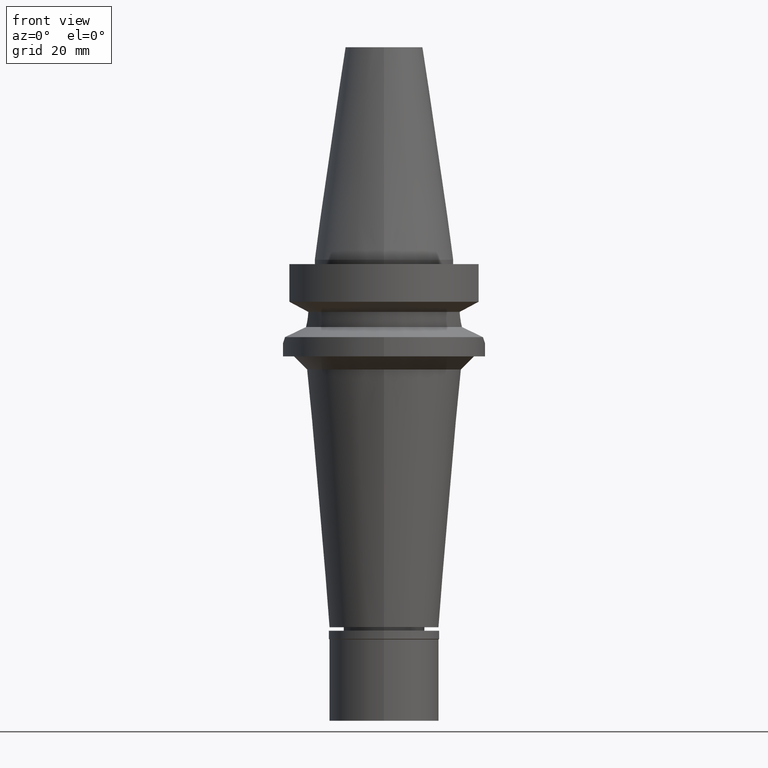
[diagram: clean part render]
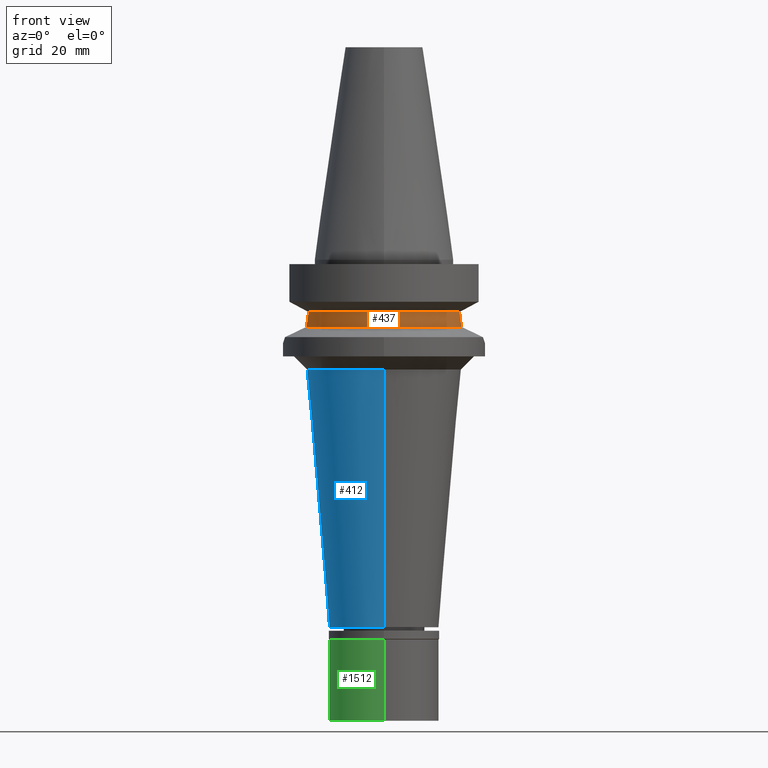
[diagram: same view with three faces highlighted in distinct colors, each labeled with its STEP entity id]
A machine part, front view with three faces highlighted in distinct colors.
Their STEP definitions:

[orange] entity #437 — the highlighted cylindrical surface (partial cylindrical patch) has radius 19 mm, axis along (0, 0, -1).
#46 = CARTESIAN_POINT ( 'NONE',  ( 17.61322740977063006, -7.137115852429626095, -14.73814199214981180 ) ) ;
#98 = ORIENTED_EDGE ( 'NONE', *, *, #142, .T. ) ;
#142 = EDGE_CURVE ( 'NONE', #2130, #449, #2701, .T. ) ;
#242 = B_SPLINE_CURVE_WITH_KNOTS ( 'NONE', 3,
 ( #2505, #371, #1808, #1345, #2859, #2172, #1680, #2631, #2647, #1666, #2605, #1707, #1502, #46, #2422 ),
 .UNSPECIFIED., .F., .F.,
 ( 4, 2, 2, 1, 1, 1, 2, 2, 4 ),
 ( 0.0000000000000000000, 0.2500000000000048295, 0.3750000000000078271, 0.4375000000000092704, 0.4687500000000104916, 0.4843750000000111022, 0.4921875000000112688, 0.5000000000000114353, 1.000000000000000000 ),
 .UNSPECIFIED. ) ;
#262 = CARTESIAN_POINT ( 'NONE',  ( -17.23531622872000213, -7.996491146969001207, -11.87660607765000087 ) ) ;
#371 = CARTESIAN_POINT ( 'NONE',  ( 17.25079912589399456, -7.963111191519515408, -12.16468723334847724 ) ) ;
#391 = DIRECTION ( 'NONE',  ( 0.0000000000000000000, 0.0000000000000000000, -1.000000000000000000 ) ) ;
#437 = ADVANCED_FACE ( 'NONE', ( #916 ), #1623, .T. ) ;
#449 = VERTEX_POINT ( 'NONE', #3042 ) ;
#483 = CARTESIAN_POINT ( 'NONE',  ( -17.32791680505555831, -7.797408658810238258, -13.04851916292124692 ) ) ;
#686 = CARTESIAN_POINT ( 'NONE',  ( -17.42165591776776523, -7.582123399470170000, -13.65444127732681245 ) ) ;
#745 = CARTESIAN_POINT ( 'NONE',  ( -17.47456408189346178, -7.459707853905101160, -13.97666143172861375 ) ) ;
#804 = DIRECTION ( 'NONE',  ( 0.0000000000000000000, 0.0000000000000000000, 1.000000000000000000 ) ) ;
#831 = CARTESIAN_POINT ( 'NONE',  ( 0.0000000000000000000, 0.0000000000000000000, -11.87660944646999894 ) ) ;
#906 = B_SPLINE_CURVE_WITH_KNOTS ( 'NONE', 3,
 ( #1661, #2627, #1898, #1928, #1881, #745, #2151, #2389, #1911, #2809, #1863, #686, #483, #2599, #262 ),
 .UNSPECIFIED., .F., .F.,
 ( 4, 2, 2, 1, 1, 1, 2, 2, 4 ),
 ( 0.0000000000000000000, 0.2499999999999951705, 0.3749999999999929501, 0.4374999999999921174, 0.4687499999999926170, 0.4843749999999927280, 0.4921874999999929501, 0.4999999999999931166, 1.000000000000000000 ),
 .UNSPECIFIED. ) ;
#916 = FACE_OUTER_BOUND ( 'NONE', #2918, .T. ) ;
#1003 = CARTESIAN_POINT ( 'NONE',  ( 0.0000000000000000000, 0.0000000000000000000, -15.32339055352999857 ) ) ;
#1160 = EDGE_CURVE ( 'NONE', #1637, #2075, #2645, .T. ) ;
#1161 = EDGE_CURVE ( 'NONE', #1637, #449, #242, .T. ) ;
#1165 = AXIS2_PLACEMENT_3D ( 'NONE', #831, #391, #2960 ) ;
#1339 = CARTESIAN_POINT ( 'NONE',  ( 17.23531135313000107, -7.996501749111999402, -11.87660739354000050 ) ) ;
#1345 = CARTESIAN_POINT ( 'NONE',  ( 17.32020187248921772, -7.811452264172603854, -12.90108126290883739 ) ) ;
#1502 = CARTESIAN_POINT ( 'NONE',  ( 17.50086807617385531, -7.400179108631100178, -14.16641331418214378 ) ) ;
#1613 = CARTESIAN_POINT ( 'NONE',  ( -17.23531622872000213, -7.996491146969001207, -11.87660607765000087 ) ) ;
#1623 = CYLINDRICAL_SURFACE ( 'NONE', #2640, 19.00000000000000000 ) ;
#1625 = AXIS2_PLACEMENT_3D ( 'NONE', #1003, #804, #2894 ) ;
#1637 = VERTEX_POINT ( 'NONE', #1339 ) ;
#1656 = CARTESIAN_POINT ( 'NONE',  ( 0.0000000000000000000, 0.0000000000000000000, 0.0000000000000000000 ) ) ;
#1661 = CARTESIAN_POINT ( 'NONE',  ( -17.75736593456000278, -6.758398853743999624, -15.32339055352999857 ) ) ;
#1666 = CARTESIAN_POINT ( 'NONE',  ( 17.41455400305665435, -7.598412036639295764, -13.60833259783796478 ) ) ;
#1680 = CARTESIAN_POINT ( 'NONE',  ( 17.38156622602346246, -7.673725376885411009, -13.38458314353863798 ) ) ;
#1707 = CARTESIAN_POINT ( 'NONE',  ( 17.41902886904462022, -7.588145056447470616, -13.63749496349985257 ) ) ;
#1808 = CARTESIAN_POINT ( 'NONE',  ( 17.27395772732930013, -7.913379800553383525, -12.45762674819685323 ) ) ;
#1863 = CARTESIAN_POINT ( 'NONE',  ( -17.42274042983988736, -7.579631478955776380, -13.66141326524954280 ) ) ;
#1881 = CARTESIAN_POINT ( 'NONE',  ( -17.51074945337274613, -7.374797396836243024, -14.18056436359429462 ) ) ;
#1898 = CARTESIAN_POINT ( 'NONE',  ( -17.62114728965395116, -7.108330574576632088, -14.74101777716710160 ) ) ;
#1911 = CARTESIAN_POINT ( 'NONE',  ( -17.42913852640172578, -7.564920785720927299, -13.70227250419844012 ) ) ;
#1928 = CARTESIAN_POINT ( 'NONE',  ( -17.53685925040699445, -7.312726842105840674, -14.31911649677020471 ) ) ;
#1937 = ORIENTED_EDGE ( 'NONE', *, *, #2565, .F. ) ;
#2075 = VERTEX_POINT ( 'NONE', #1613 ) ;
#2108 = DIRECTION ( 'NONE',  ( 0.0000000000000000000, -1.000000000000000000, 0.0000000000000000000 ) ) ;
#2130 = VERTEX_POINT ( 'NONE', #2856 ) ;
#2151 = CARTESIAN_POINT ( 'NONE',  ( -17.45721622717184829, -7.500114418629928892, -13.87568910922046506 ) ) ;
#2172 = CARTESIAN_POINT ( 'NONE',  ( 17.36640948879380630, -7.707982828176216827, -13.27282317297279590 ) ) ;
#2389 = CARTESIAN_POINT ( 'NONE',  ( -17.43828051761150277, -7.543867038500548183, -13.75975511332498691 ) ) ;
#2422 = CARTESIAN_POINT ( 'NONE',  ( 17.75736593456000278, -6.758398853743999624, -15.32339055352999857 ) ) ;
#2441 = ORIENTED_EDGE ( 'NONE', *, *, #1160, .T. ) ;
#2505 = CARTESIAN_POINT ( 'NONE',  ( 17.23531135313000107, -7.996501749111999402, -11.87660739354000050 ) ) ;
#2565 = EDGE_CURVE ( 'NONE', #2130, #2075, #906, .T. ) ;
#2599 = CARTESIAN_POINT ( 'NONE',  ( -17.26628428877149446, -7.929745229197038725, -12.45263121938651985 ) ) ;
#2605 = CARTESIAN_POINT ( 'NONE',  ( 17.41740973184774077, -7.591861673420408074, -13.62698225823840303 ) ) ;
#2627 = CARTESIAN_POINT ( 'NONE',  ( -17.68528418001084290, -6.947790175626559872, -15.03071555068035181 ) ) ;
#2631 = CARTESIAN_POINT ( 'NONE',  ( 17.40050758145360632, -7.630565565504821457, -13.51508960615575639 ) ) ;
#2640 = AXIS2_PLACEMENT_3D ( 'NONE', #1656, #2834, #2108 ) ;
#2645 = CIRCLE ( 'NONE', #1165, 19.00000000000000000 ) ;
#2647 = CARTESIAN_POINT ( 'NONE',  ( 17.41029288300091338, -7.608179589571716583, -13.58035844458879282 ) ) ;
#2701 = CIRCLE ( 'NONE', #1625, 19.00000000000000000 ) ;
#2809 = CARTESIAN_POINT ( 'NONE',  ( -17.42529035807689297, -7.573770179181386730, -13.67774275266039474 ) ) ;
#2834 = DIRECTION ( 'NONE',  ( 0.0000000000000000000, 0.0000000000000000000, -1.000000000000000000 ) ) ;
#2856 = CARTESIAN_POINT ( 'NONE',  ( -17.75736593456000278, -6.758398853743999624, -15.32339055352999857 ) ) ;
#2859 = CARTESIAN_POINT ( 'NONE',  ( 17.33753429471035901, -7.772924035424132683, -13.04956639070095292 ) ) ;
#2863 = ORIENTED_EDGE ( 'NONE', *, *, #1161, .F. ) ;
#2894 = DIRECTION ( 'NONE',  ( 0.0000000000000000000, -1.000000000000000000, 0.0000000000000000000 ) ) ;
#2918 = EDGE_LOOP ( 'NONE', ( #1937, #98, #2863, #2441 ) ) ;
#2960 = DIRECTION ( 'NONE',  ( 0.0000000000000000000, -1.000000000000000000, 0.0000000000000000000 ) ) ;
#3042 = CARTESIAN_POINT ( 'NONE',  ( 17.75736593456000278, -6.758398853743999624, -15.32339055352999857 ) ) ;

[blue] entity #412 — the highlighted conical surface has half-angle 5 deg.
#5 = VERTEX_POINT ( 'NONE', #3016 ) ;
#309 = CIRCLE ( 'NONE', #2066, 12.50000000000000000 ) ;
#314 = EDGE_CURVE ( 'NONE', #1009, #5, #2147, .T. ) ;
#364 = ORIENTED_EDGE ( 'NONE', *, *, #1948, .T. ) ;
#374 = CARTESIAN_POINT ( 'NONE',  ( 0.0000000000000000000, 0.0000000000000000000, -25.00000000000000000 ) ) ;
#390 = CARTESIAN_POINT ( 'NONE',  ( 0.0000000000000000000, -12.50000000000000000, -83.70000000000000284 ) ) ;
#405 = DIRECTION ( 'NONE',  ( 0.0000000000000000000, 0.08715574274763414342, -0.9961946980917475436 ) ) ;
#412 = ADVANCED_FACE ( 'NONE', ( #1425 ), #1655, .T. ) ;
#455 = AXIS2_PLACEMENT_3D ( 'NONE', #2094, #2848, #697 ) ;
#561 = CARTESIAN_POINT ( 'NONE',  ( 0.0000000000000000000, -17.63558454896999805, -25.00000000000000000 ) ) ;
#697 = DIRECTION ( 'NONE',  ( 0.0000000000000000000, 1.000000000000000000, 0.0000000000000000000 ) ) ;
#810 = AXIS2_PLACEMENT_3D ( 'NONE', #374, #1362, #871 ) ;
#839 = DIRECTION ( 'NONE',  ( 0.0000000000000000000, -0.08715574274763414342, -0.9961946980917475436 ) ) ;
#871 = DIRECTION ( 'NONE',  ( 0.0000000000000000000, -1.000000000000000000, 0.0000000000000000000 ) ) ;
#1009 = VERTEX_POINT ( 'NONE', #561 ) ;
#1247 = EDGE_CURVE ( 'NONE', #2574, #3027, #309, .T. ) ;
#1254 = EDGE_LOOP ( 'NONE', ( #2121, #1581, #2288, #364 ) ) ;
#1278 = DIRECTION ( 'NONE',  ( 0.0000000000000000000, 0.0000000000000000000, 1.000000000000000000 ) ) ;
#1314 = LINE ( 'NONE', #1750, #2516 ) ;
#1343 = LINE ( 'NONE', #2537, #2570 ) ;
#1362 = DIRECTION ( 'NONE',  ( 0.0000000000000000000, 0.0000000000000000000, -1.000000000000000000 ) ) ;
#1425 = FACE_OUTER_BOUND ( 'NONE', #1254, .T. ) ;
#1581 = ORIENTED_EDGE ( 'NONE', *, *, #3034, .F. ) ;
#1655 = CONICAL_SURFACE ( 'NONE', #455, 15.06779227448999947, 0.08726646259969973729 ) ;
#1750 = CARTESIAN_POINT ( 'NONE',  ( 0.0000000000000000000, 17.63558454896999805, -25.00000000000000000 ) ) ;
#1948 = EDGE_CURVE ( 'NONE', #5, #2574, #1314, .T. ) ;
#2066 = AXIS2_PLACEMENT_3D ( 'NONE', #2260, #1278, #2240 ) ;
#2094 = CARTESIAN_POINT ( 'NONE',  ( 0.0000000000000000000, 0.0000000000000000000, -54.35000000000000142 ) ) ;
#2121 = ORIENTED_EDGE ( 'NONE', *, *, #1247, .T. ) ;
#2147 = CIRCLE ( 'NONE', #810, 17.63558454896999805 ) ;
#2240 = DIRECTION ( 'NONE',  ( 0.0000000000000000000, 1.000000000000000000, 0.0000000000000000000 ) ) ;
#2260 = CARTESIAN_POINT ( 'NONE',  ( 0.0000000000000000000, 0.0000000000000000000, -83.70000000000000284 ) ) ;
#2288 = ORIENTED_EDGE ( 'NONE', *, *, #314, .T. ) ;
#2516 = VECTOR ( 'NONE', #839, 1000.000000000000114 ) ;
#2537 = CARTESIAN_POINT ( 'NONE',  ( 0.0000000000000000000, -17.63558454896999805, -25.00000000000000000 ) ) ;
#2570 = VECTOR ( 'NONE', #405, 1000.000000000000114 ) ;
#2574 = VERTEX_POINT ( 'NONE', #2795 ) ;
#2795 = CARTESIAN_POINT ( 'NONE',  ( 0.0000000000000000000, 12.50000000000000000, -83.70000000000000284 ) ) ;
#2848 = DIRECTION ( 'NONE',  ( 0.0000000000000000000, 0.0000000000000000000, 1.000000000000000000 ) ) ;
#3016 = CARTESIAN_POINT ( 'NONE',  ( 0.0000000000000000000, 17.63558454896999805, -25.00000000000000000 ) ) ;
#3027 = VERTEX_POINT ( 'NONE', #390 ) ;
#3034 = EDGE_CURVE ( 'NONE', #1009, #3027, #1343, .T. ) ;

[green] entity #1512 — the highlighted cylindrical surface (partial cylindrical patch) has radius 12.5 mm, axis along (0, 0, -1).
#61 = DIRECTION ( 'NONE',  ( 0.0000000000000000000, 0.0000000000000000000, -1.000000000000000000 ) ) ;
#66 = DIRECTION ( 'NONE',  ( 0.0000000000000000000, 0.0000000000000000000, -1.000000000000000000 ) ) ;
#81 = VERTEX_POINT ( 'NONE', #2371 ) ;
#88 = CIRCLE ( 'NONE', #531, 12.50000000000000000 ) ;
#299 = EDGE_CURVE ( 'NONE', #81, #2725, #1359, .T. ) ;
#338 = ORIENTED_EDGE ( 'NONE', *, *, #1849, .T. ) ;
#339 = CARTESIAN_POINT ( 'NONE',  ( 0.0000000000000000000, 12.50000000000000000, -2.000000000000000000 ) ) ;
#355 = ORIENTED_EDGE ( 'NONE', *, *, #2396, .T. ) ;
#531 = AXIS2_PLACEMENT_3D ( 'NONE', #1567, #2312, #3030 ) ;
#603 = CARTESIAN_POINT ( 'NONE',  ( 0.0000000000000000000, -12.50000000000000000, -2.000000000000000000 ) ) ;
#614 = VERTEX_POINT ( 'NONE', #339 ) ;
#690 = DIRECTION ( 'NONE',  ( 0.0000000000000000000, 0.0000000000000000000, -1.000000000000000000 ) ) ;
#796 = ORIENTED_EDGE ( 'NONE', *, *, #1089, .F. ) ;
#833 = CARTESIAN_POINT ( 'NONE',  ( 0.0000000000000000000, 0.0000000000000000000, -20.50000000000000000 ) ) ;
#891 = DIRECTION ( 'NONE',  ( 0.0000000000000000000, 0.0000000000000000000, 1.000000000000000000 ) ) ;
#965 = CARTESIAN_POINT ( 'NONE',  ( 0.0000000000000000000, 12.50000000000000000, -2.000000000000000000 ) ) ;
#1010 = CYLINDRICAL_SURFACE ( 'NONE', #1213, 12.50000000000000000 ) ;
#1089 = EDGE_CURVE ( 'NONE', #1320, #2725, #1867, .T. ) ;
#1213 = AXIS2_PLACEMENT_3D ( 'NONE', #2399, #66, #1939 ) ;
#1217 = CARTESIAN_POINT ( 'NONE',  ( 0.0000000000000000000, -12.50000000000000000, -20.50000000000000000 ) ) ;
#1320 = VERTEX_POINT ( 'NONE', #603 ) ;
#1359 = CIRCLE ( 'NONE', #1749, 12.50000000000000000 ) ;
#1483 = VECTOR ( 'NONE', #61, 1000.000000000000000 ) ;
#1490 = FACE_OUTER_BOUND ( 'NONE', #2743, .T. ) ;
#1512 = ADVANCED_FACE ( 'NONE', ( #1490 ), #1010, .T. ) ;
#1567 = CARTESIAN_POINT ( 'NONE',  ( 0.0000000000000000000, 0.0000000000000000000, -2.000000000000000000 ) ) ;
#1664 = VECTOR ( 'NONE', #690, 1000.000000000000000 ) ;
#1749 = AXIS2_PLACEMENT_3D ( 'NONE', #833, #891, #2030 ) ;
#1790 = CARTESIAN_POINT ( 'NONE',  ( 0.0000000000000000000, -12.50000000000000000, -2.000000000000000000 ) ) ;
#1849 = EDGE_CURVE ( 'NONE', #614, #81, #2587, .T. ) ;
#1867 = LINE ( 'NONE', #1790, #1664 ) ;
#1939 = DIRECTION ( 'NONE',  ( 0.0000000000000000000, -1.000000000000000000, 0.0000000000000000000 ) ) ;
#2002 = ORIENTED_EDGE ( 'NONE', *, *, #299, .T. ) ;
#2030 = DIRECTION ( 'NONE',  ( 0.0000000000000000000, 1.000000000000000000, 0.0000000000000000000 ) ) ;
#2312 = DIRECTION ( 'NONE',  ( 0.0000000000000000000, 0.0000000000000000000, -1.000000000000000000 ) ) ;
#2371 = CARTESIAN_POINT ( 'NONE',  ( 0.0000000000000000000, 12.50000000000000000, -20.50000000000000000 ) ) ;
#2396 = EDGE_CURVE ( 'NONE', #1320, #614, #88, .T. ) ;
#2399 = CARTESIAN_POINT ( 'NONE',  ( 0.0000000000000000000, 0.0000000000000000000, 0.0000000000000000000 ) ) ;
#2587 = LINE ( 'NONE', #965, #1483 ) ;
#2725 = VERTEX_POINT ( 'NONE', #1217 ) ;
#2743 = EDGE_LOOP ( 'NONE', ( #2002, #796, #355, #338 ) ) ;
#3030 = DIRECTION ( 'NONE',  ( 0.0000000000000000000, -1.000000000000000000, 0.0000000000000000000 ) ) ;